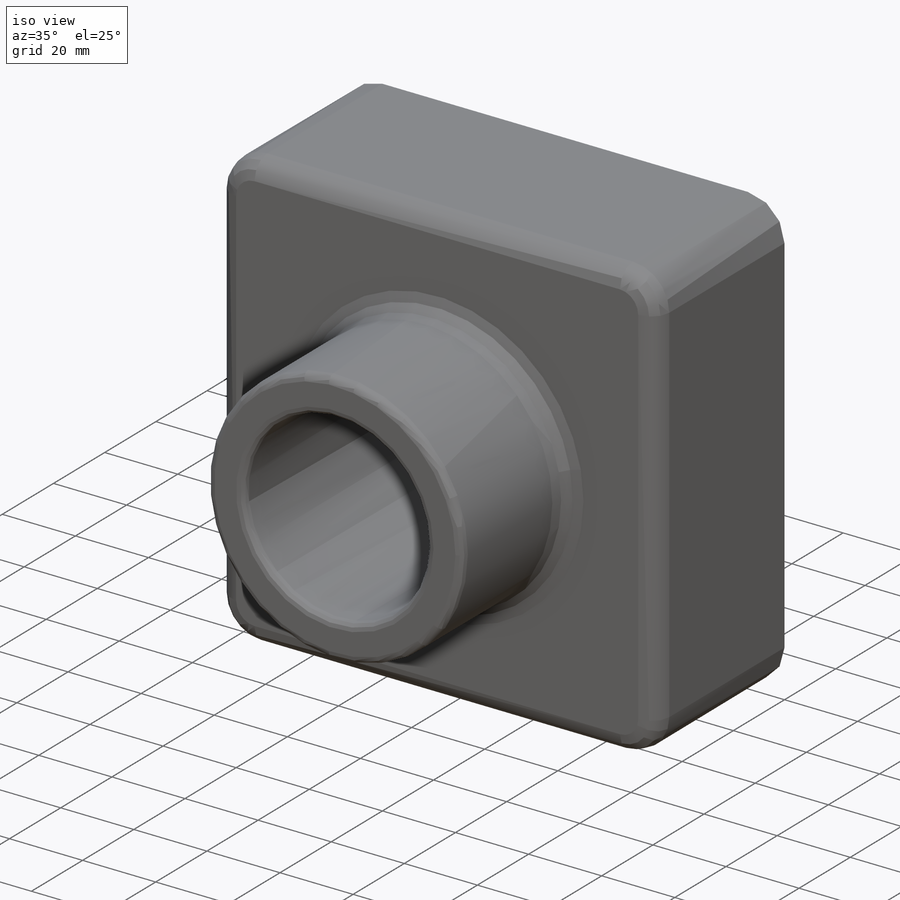
[diagram: iso view]
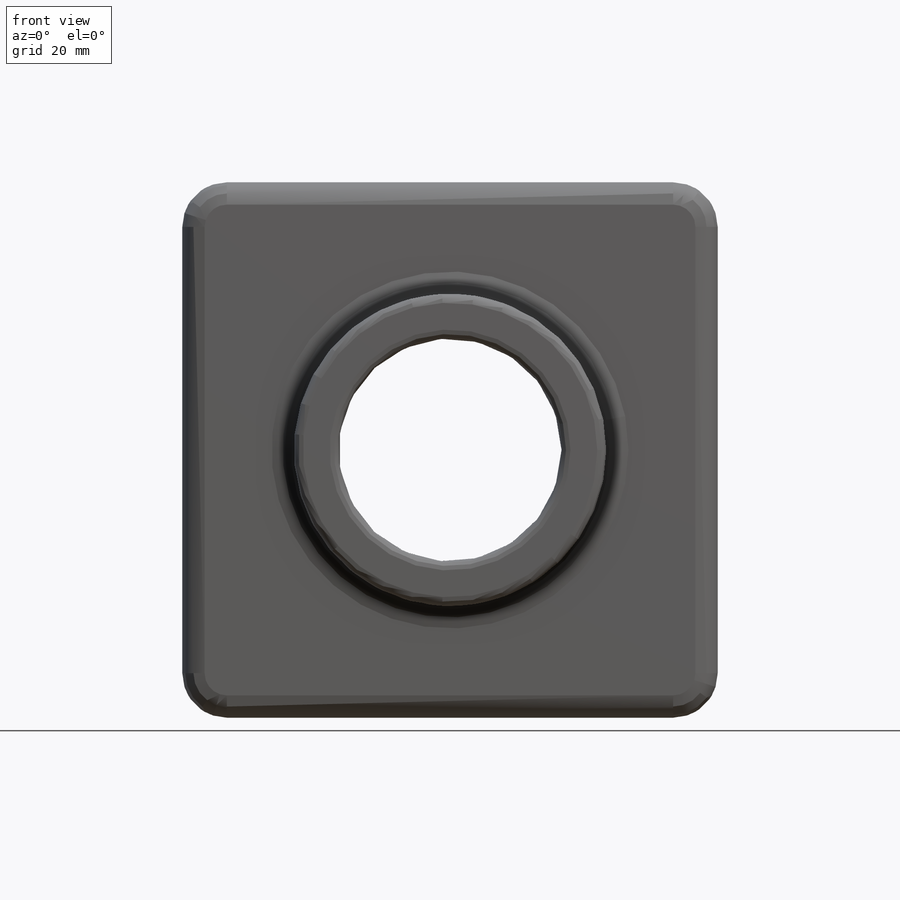
[diagram: front view]
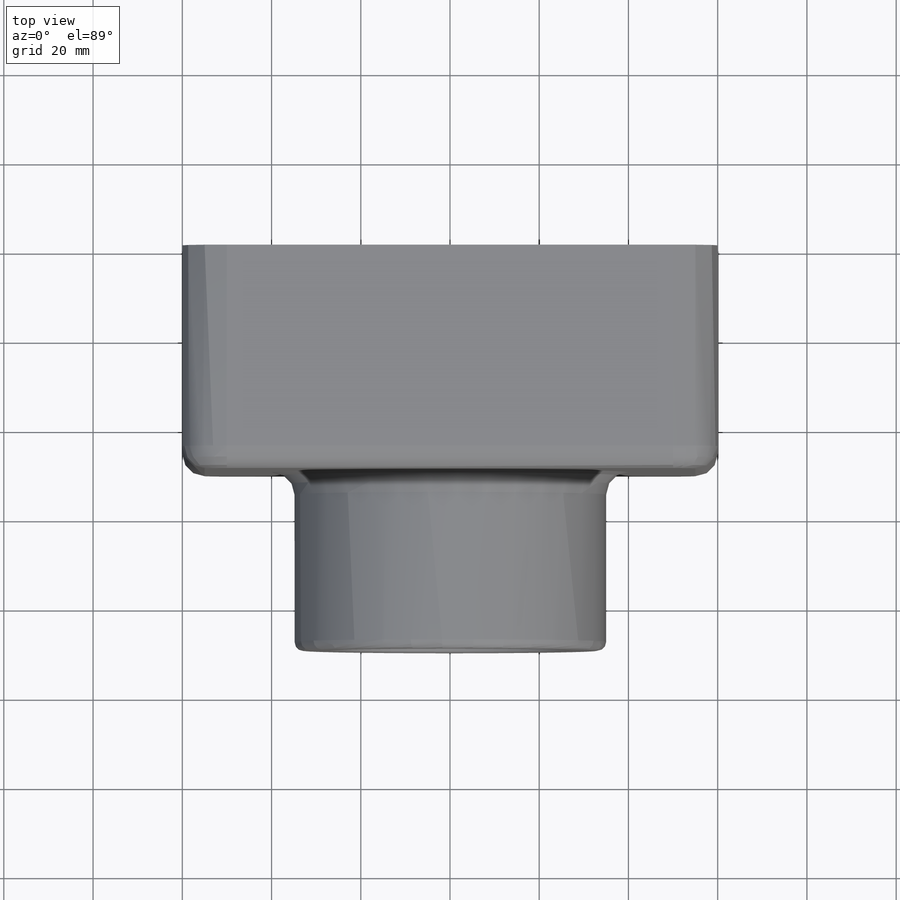
[diagram: top view]
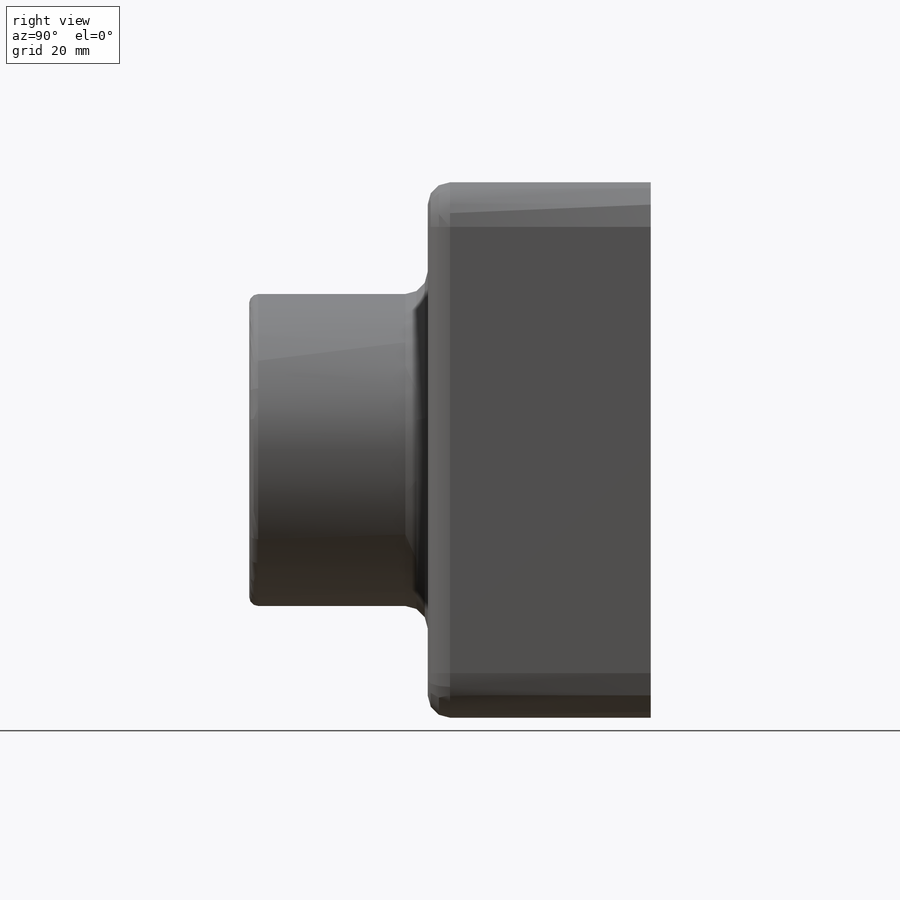
[diagram: right view]
SOLIDWORKS PART (.sldprt)
format: sldprt  version: not decoded by parser v0  size: 297,984 bytes
history: native  units: mm
features: plane x3, sketch x3, fillet x3, extrude x2, material x1, cut_extrude x1, shell x1 (+10 scaffold rows collapsed)
feature tree (24):
  scaffold x10  (default folders/planes/origin — collapsed)
  material  "Materiál <není určen>"
  plane  "Přední rovina"
  plane  "Horní rovina"
  plane  "Pravá rovina"
  sketch  "Skica1"  dims[D1=120.0mm D2=120.0mm]
  extrude  "Vysunout1"  Depth=50mm
  sketch  "Skica3"  dims[D1=70.0mm]
  extrude  "Vysunout2"  Depth=40mm
  sketch  "Skica4"  dims[D1=50.0mm]
  cut_extrude  "Odebrat vysunutím1"  [1 undecoded]
  fillet  "Zaoblit2"  Radius=10mm
  fillet  "Zaoblit3"  Radius=5mm
  fillet  "Zaoblit4"  Radius=2mm
  shell  "Skořepina2"  Thickness=2mm
decode coverage: 9 of 10 modeling features carry decoded parameters
note: 1 parameter value undecoded
note: suppression state not decoded; provenance and decode notes live in map.json
